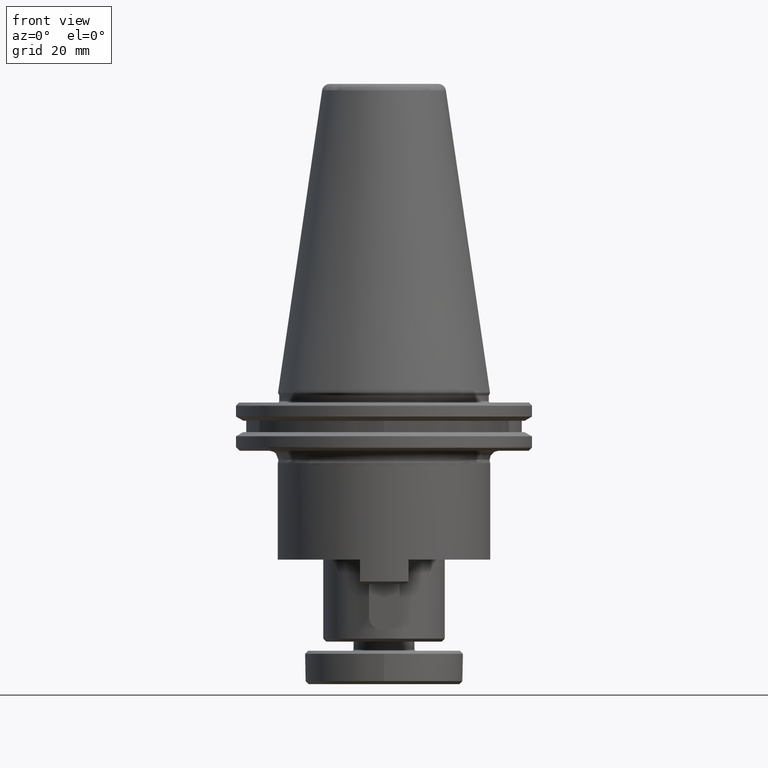
[diagram: clean part render]
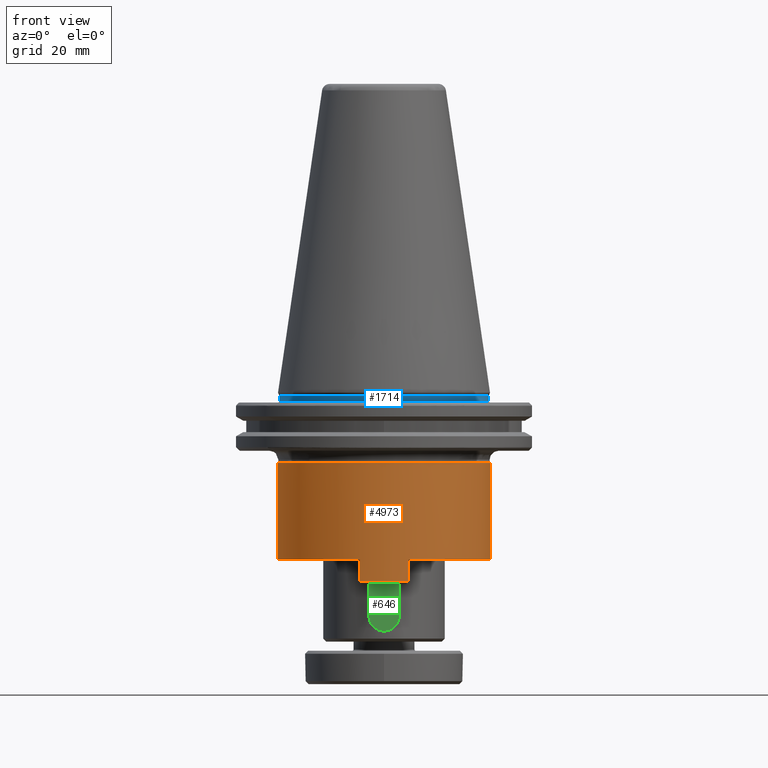
[diagram: same view with three faces highlighted in distinct colors, each labeled with its STEP entity id]
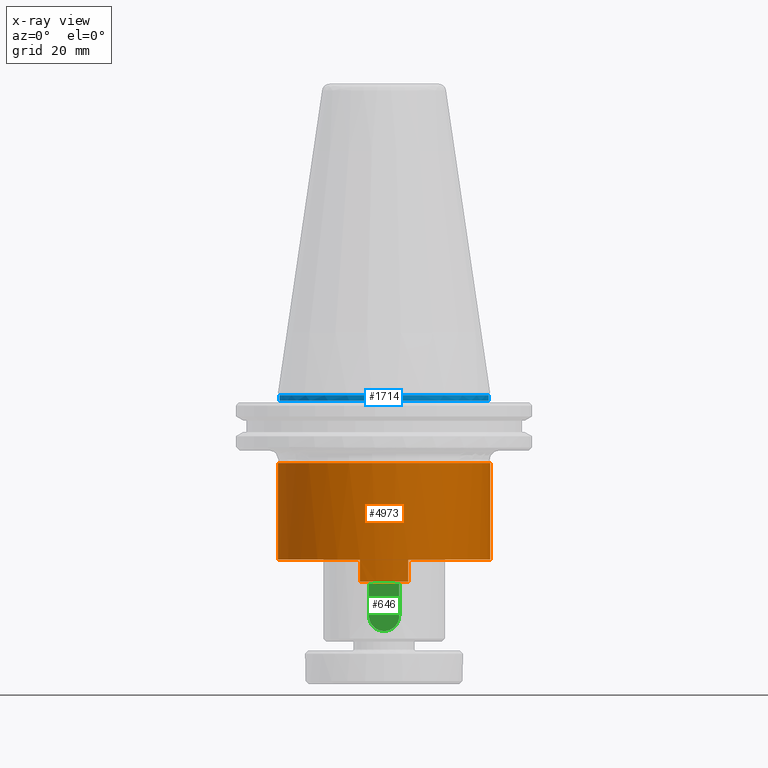
[diagram: x-ray of the same camera — body ghosted, the three highlighted faces saturated]
A machine part, front view with three faces highlighted in distinct colors.
The next image is the same camera in x-ray (body ghosted, the three faces saturated) — at least one of them is partly hidden behind the body in this view.
Their STEP definitions:

[orange] entity #4973 — the highlighted cylindrical surface (partial cylindrical patch) has radius 35 mm, axis along (-0, 0, 1).
#8 = CIRCLE ( 'NONE', #4147, 34.99999999999999300 ) ;
#19 = LINE ( 'NONE', #2529, #3015 ) ;
#55 = EDGE_CURVE ( 'NONE', #456, #1844, #19, .T. ) ;
#85 = VECTOR ( 'NONE', #1145, 1000.000000000000000 ) ;
#146 = CARTESIAN_POINT ( 'NONE',  ( 87.15291260394593600, 190.0907862128019900, 168.8002788161905400 ) ) ;
#180 = AXIS2_PLACEMENT_3D ( 'NONE', #3765, #1438, #4159 ) ;
#206 = AXIS2_PLACEMENT_3D ( 'NONE', #2676, #326, #3057 ) ;
#281 = VERTEX_POINT ( 'NONE', #2876 ) ;
#325 = ORIENTED_EDGE ( 'NONE', *, *, #1030, .T. ) ;
#326 = DIRECTION ( 'NONE',  ( 0.0000000000000000000, -0.0000000000000000000, -1.000000000000000000 ) ) ;
#439 = CARTESIAN_POINT ( 'NONE',  ( 146.9016499456452000, 165.3420488711029200, 200.6232458473564300 ) ) ;
#456 = VERTEX_POINT ( 'NONE', #146 ) ;
#485 = DIRECTION ( 'NONE',  ( -2.478176394252581700E-017, 0.0000000000000000000, 1.000000000000000000 ) ) ;
#733 = CARTESIAN_POINT ( 'NONE',  ( 122.1529126039459900, 190.0907862128020700, 168.8002788161905400 ) ) ;
#876 = VERTEX_POINT ( 'NONE', #439 ) ;
#929 = VERTEX_POINT ( 'NONE', #965 ) ;
#965 = CARTESIAN_POINT ( 'NONE',  ( 157.1529126039460500, 190.0907862128019900, 168.8002788161905400 ) ) ;
#984 = CARTESIAN_POINT ( 'NONE',  ( 130.1529126155098200, 156.0173361407153700, 161.6002788091370200 ) ) ;
#1030 = EDGE_CURVE ( 'NONE', #2580, #929, #4710, .T. ) ;
#1049 = ORIENTED_EDGE ( 'NONE', *, *, #55, .F. ) ;
#1120 = DIRECTION ( 'NONE',  ( 1.000000000000000000, 0.0000000000000000000, 0.0000000000000000000 ) ) ;
#1145 = DIRECTION ( 'NONE',  ( 2.478176394252581700E-017, -0.0000000000000000000, -1.000000000000000000 ) ) ;
#1153 = CARTESIAN_POINT ( 'NONE',  ( 114.1529126047918800, 156.0173361378017200, 161.6002788081370100 ) ) ;
#1392 = ORIENTED_EDGE ( 'NONE', *, *, #4512, .T. ) ;
#1438 = DIRECTION ( 'NONE',  ( -0.0000000000000000000, -0.0000000000000000000, 1.000000000000000000 ) ) ;
#1483 = FACE_OUTER_BOUND ( 'NONE', #2407, .T. ) ;
#1494 = CIRCLE ( 'NONE', #4090, 35.00000000000004300 ) ;
#1545 = DIRECTION ( 'NONE',  ( -2.478176394252581700E-017, 0.0000000000000000000, 1.000000000000000000 ) ) ;
#1571 = ORIENTED_EDGE ( 'NONE', *, *, #2979, .T. ) ;
#1725 = CARTESIAN_POINT ( 'NONE',  ( 122.1529126039459900, 190.0907862128020700, 200.6232458473564300 ) ) ;
#1844 = VERTEX_POINT ( 'NONE', #4679 ) ;
#2013 = EDGE_CURVE ( 'NONE', #4295, #4183, #8, .T. ) ;
#2028 = DIRECTION ( 'NONE',  ( 0.0000000000000000000, -0.0000000000000000000, -1.000000000000000000 ) ) ;
#2103 = AXIS2_PLACEMENT_3D ( 'NONE', #1725, #4456, #2118 ) ;
#2110 = CIRCLE ( 'NONE', #2103, 35.00000000065030300 ) ;
#2118 = DIRECTION ( 'NONE',  ( 1.000000000000000000, 0.0000000000000000000, 0.0000000000000000000 ) ) ;
#2256 = CARTESIAN_POINT ( 'NONE',  ( 157.1529126044182500, 190.0907862128019900, 200.6232458474099500 ) ) ;
#2264 = VERTEX_POINT ( 'NONE', #3957 ) ;
#2295 = EDGE_CURVE ( 'NONE', #3467, #876, #3724, .T. ) ;
#2351 = CARTESIAN_POINT ( 'NONE',  ( 122.1529126039459900, 155.0907862138019500, 161.6002788081370100 ) ) ;
#2407 = EDGE_LOOP ( 'NONE', ( #1049, #4894, #4859, #2774, #1571, #1392, #325, #4881, #3680, #4733, #4401 ) ) ;
#2418 = CIRCLE ( 'NONE', #206, 35.00000000062969700 ) ;
#2486 = CIRCLE ( 'NONE', #2986, 34.99999999999999300 ) ;
#2529 = CARTESIAN_POINT ( 'NONE',  ( 87.15291260394599200, 190.0907862128019900, 183.8002788091370400 ) ) ;
#2580 = VERTEX_POINT ( 'NONE', #4473 ) ;
#2598 = EDGE_CURVE ( 'NONE', #281, #1844, #2418, .T. ) ;
#2676 = CARTESIAN_POINT ( 'NONE',  ( 122.1529126039459900, 190.0907862128019900, 200.6232458474098900 ) ) ;
#2720 = VECTOR ( 'NONE', #4874, 1000.000000000000000 ) ;
#2759 = DIRECTION ( 'NONE',  ( 1.000000000000000000, 0.0000000000000000000, 0.0000000000000000000 ) ) ;
#2774 = ORIENTED_EDGE ( 'NONE', *, *, #2013, .T. ) ;
#2791 = CARTESIAN_POINT ( 'NONE',  ( 157.1529126039459900, 190.0907862128019900, 183.8002788091370400 ) ) ;
#2818 = CARTESIAN_POINT ( 'NONE',  ( 122.1529126039459900, 190.0907862128019900, 161.6002788081370100 ) ) ;
#2852 = VECTOR ( 'NONE', #4722, 1000.000000000000000 ) ;
#2856 = EDGE_CURVE ( 'NONE', #929, #3467, #3875, .T. ) ;
#2876 = CARTESIAN_POINT ( 'NONE',  ( 97.40417526224683800, 165.3420488711028600, 200.6232458473564300 ) ) ;
#2927 = CARTESIAN_POINT ( 'NONE',  ( 114.1529126043910500, 156.0173361378958800, 168.8002788161905400 ) ) ;
#2979 = EDGE_CURVE ( 'NONE', #4183, #2264, #2486, .T. ) ;
#2986 = AXIS2_PLACEMENT_3D ( 'NONE', #3874, #1545, #4269 ) ;
#3015 = VECTOR ( 'NONE', #3692, 1000.000000000000000 ) ;
#3057 = DIRECTION ( 'NONE',  ( -1.000000000000000000, 0.0000000000000000000, 0.0000000000000000000 ) ) ;
#3152 = EDGE_CURVE ( 'NONE', #281, #876, #2110, .T. ) ;
#3207 = DIRECTION ( 'NONE',  ( 1.000000000000000000, 0.0000000000000000000, 0.0000000000000000000 ) ) ;
#3434 = CYLINDRICAL_SURFACE ( 'NONE', #3767, 34.99999999999999300 ) ;
#3460 = DIRECTION ( 'NONE',  ( -0.0000000000000000000, -0.0000000000000000000, 1.000000000000000000 ) ) ;
#3467 = VERTEX_POINT ( 'NONE', #2256 ) ;
#3506 = EDGE_CURVE ( 'NONE', #456, #4507, #1494, .T. ) ;
#3536 = DIRECTION ( 'NONE',  ( -9.912705577010326800E-017, 0.0000000000000000000, 1.000000000000000000 ) ) ;
#3591 = EDGE_CURVE ( 'NONE', #4507, #4295, #4240, .T. ) ;
#3680 = ORIENTED_EDGE ( 'NONE', *, *, #2295, .T. ) ;
#3692 = DIRECTION ( 'NONE',  ( -9.912705577010326800E-017, 0.0000000000000000000, 1.000000000000000000 ) ) ;
#3724 = CIRCLE ( 'NONE', #4846, 35.00000000062969700 ) ;
#3765 = CARTESIAN_POINT ( 'NONE',  ( 122.1529126039459900, 190.0907862128020700, 168.8002788161905400 ) ) ;
#3767 = AXIS2_PLACEMENT_3D ( 'NONE', #4689, #3536, #2759 ) ;
#3874 = CARTESIAN_POINT ( 'NONE',  ( 122.1529126039459900, 190.0907862128019900, 161.6002788081370100 ) ) ;
#3875 = LINE ( 'NONE', #2791, #2852 ) ;
#3957 = CARTESIAN_POINT ( 'NONE',  ( 130.1529126095647700, 156.0173361400526900, 161.6002788084232700 ) ) ;
#4090 = AXIS2_PLACEMENT_3D ( 'NONE', #733, #3460, #1120 ) ;
#4147 = AXIS2_PLACEMENT_3D ( 'NONE', #2818, #485, #3207 ) ;
#4159 = DIRECTION ( 'NONE',  ( 1.000000000000000000, 0.0000000000000000000, 0.0000000000000000000 ) ) ;
#4183 = VERTEX_POINT ( 'NONE', #2351 ) ;
#4240 = LINE ( 'NONE', #4261, #85 ) ;
#4261 = CARTESIAN_POINT ( 'NONE',  ( 114.1529126056377500, 156.0173361376031400, 161.6002788091370200 ) ) ;
#4269 = DIRECTION ( 'NONE',  ( 1.000000000000000000, 0.0000000000000000000, 0.0000000000000000000 ) ) ;
#4295 = VERTEX_POINT ( 'NONE', #1153 ) ;
#4369 = CARTESIAN_POINT ( 'NONE',  ( 122.1529126039459900, 190.0907862128019900, 200.6232458474098900 ) ) ;
#4401 = ORIENTED_EDGE ( 'NONE', *, *, #2598, .T. ) ;
#4456 = DIRECTION ( 'NONE',  ( -0.0000000000000000000, -0.0000000000000000000, 1.000000000000000000 ) ) ;
#4473 = CARTESIAN_POINT ( 'NONE',  ( 130.1529126097279100, 156.0173361393578700, 168.8002788161905400 ) ) ;
#4507 = VERTEX_POINT ( 'NONE', #2927 ) ;
#4512 = EDGE_CURVE ( 'NONE', #2264, #2580, #4661, .T. ) ;
#4661 = LINE ( 'NONE', #984, #2720 ) ;
#4679 = CARTESIAN_POINT ( 'NONE',  ( 87.15291260347373700, 190.0907862128019900, 200.6232458474099500 ) ) ;
#4689 = CARTESIAN_POINT ( 'NONE',  ( 122.1529126039459900, 190.0907862128019900, 183.8002788091370400 ) ) ;
#4710 = CIRCLE ( 'NONE', #180, 35.00000000000004300 ) ;
#4722 = DIRECTION ( 'NONE',  ( -9.912705577010326800E-017, 0.0000000000000000000, 1.000000000000000000 ) ) ;
#4733 = ORIENTED_EDGE ( 'NONE', *, *, #3152, .F. ) ;
#4759 = DIRECTION ( 'NONE',  ( -1.000000000000000000, 0.0000000000000000000, 0.0000000000000000000 ) ) ;
#4846 = AXIS2_PLACEMENT_3D ( 'NONE', #4369, #2028, #4759 ) ;
#4859 = ORIENTED_EDGE ( 'NONE', *, *, #3591, .T. ) ;
#4874 = DIRECTION ( 'NONE',  ( -2.478176394252581700E-017, 0.0000000000000000000, 1.000000000000000000 ) ) ;
#4881 = ORIENTED_EDGE ( 'NONE', *, *, #2856, .T. ) ;
#4894 = ORIENTED_EDGE ( 'NONE', *, *, #3506, .T. ) ;
#4973 = ADVANCED_FACE ( 'NONE', ( #1483 ), #3434, .T. ) ;

[blue] entity #1714 — the highlighted cylindrical surface (partial cylindrical patch) has radius 34.5 mm, axis along (0, -0, 1).
#30 = EDGE_CURVE ( 'NONE', #3866, #3754, #4168, .T. ) ;
#185 = CARTESIAN_POINT ( 'NONE',  ( 97.75772866897946800, 165.6956022778354600, 221.1002788085793300 ) ) ;
#247 = ORIENTED_EDGE ( 'NONE', *, *, #2983, .F. ) ;
#255 = VECTOR ( 'NONE', #4793, 1000.000000000000000 ) ;
#373 = CARTESIAN_POINT ( 'NONE',  ( 87.65291260394599200, 190.0907862128019900, 221.1002788091370500 ) ) ;
#590 = CARTESIAN_POINT ( 'NONE',  ( 122.1529126039459900, 190.0907862128019900, 221.1002788085793300 ) ) ;
#653 = LINE ( 'NONE', #373, #4543 ) ;
#819 = ORIENTED_EDGE ( 'NONE', *, *, #30, .T. ) ;
#875 = CARTESIAN_POINT ( 'NONE',  ( 156.6529126039459900, 190.0907862128019900, 221.1002788085793300 ) ) ;
#975 = ORIENTED_EDGE ( 'NONE', *, *, #1443, .T. ) ;
#980 = DIRECTION ( 'NONE',  ( 1.000000000000000000, 0.0000000000000000000, 0.0000000000000000000 ) ) ;
#1180 = FACE_OUTER_BOUND ( 'NONE', #4575, .T. ) ;
#1265 = CARTESIAN_POINT ( 'NONE',  ( 122.1529126039459900, 190.0907862128020700, 221.1002788085793300 ) ) ;
#1396 = CARTESIAN_POINT ( 'NONE',  ( 146.5480965389126000, 165.6956022778355500, 221.1002788085793300 ) ) ;
#1443 = EDGE_CURVE ( 'NONE', #3988, #4501, #2948, .T. ) ;
#1618 = DIRECTION ( 'NONE',  ( 0.0000000000000000000, -0.0000000000000000000, 1.000000000000000000 ) ) ;
#1630 = EDGE_CURVE ( 'NONE', #3754, #3695, #3497, .T. ) ;
#1642 = DIRECTION ( 'NONE',  ( 1.000000000000000000, 0.0000000000000000000, 0.0000000000000000000 ) ) ;
#1714 = ADVANCED_FACE ( 'NONE', ( #1180 ), #3004, .T. ) ;
#1804 = DIRECTION ( 'NONE',  ( -1.571307496355803400E-018, 0.0000000000000000000, 1.000000000000000000 ) ) ;
#1868 = CARTESIAN_POINT ( 'NONE',  ( 156.6529126039459900, 190.0907862128019900, 222.8888633681370700 ) ) ;
#2149 = CARTESIAN_POINT ( 'NONE',  ( 87.65291260394599200, 190.0907862128019900, 222.8888633681370700 ) ) ;
#2439 = CARTESIAN_POINT ( 'NONE',  ( 122.1529126039459900, 190.0907862128019900, 221.1002788091370500 ) ) ;
#2545 = CIRCLE ( 'NONE', #4745, 34.49999999999998600 ) ;
#2591 = EDGE_CURVE ( 'NONE', #4249, #3695, #2545, .T. ) ;
#2811 = DIRECTION ( 'NONE',  ( 0.0000000000000000000, -0.0000000000000000000, 1.000000000000000000 ) ) ;
#2948 = CIRCLE ( 'NONE', #3223, 34.49999999999998600 ) ;
#2983 = EDGE_CURVE ( 'NONE', #3988, #4249, #653, .T. ) ;
#2996 = CARTESIAN_POINT ( 'NONE',  ( 87.65291260394599200, 190.0907862128019900, 221.1002788085793300 ) ) ;
#3004 = CYLINDRICAL_SURFACE ( 'NONE', #3646, 34.49999999999998600 ) ;
#3219 = AXIS2_PLACEMENT_3D ( 'NONE', #1265, #3980, #1642 ) ;
#3223 = AXIS2_PLACEMENT_3D ( 'NONE', #3947, #1618, #4337 ) ;
#3240 = CARTESIAN_POINT ( 'NONE',  ( 156.6529126039459900, 190.0907862128019900, 221.1002788091370500 ) ) ;
#3310 = DIRECTION ( 'NONE',  ( 0.0000000000000000000, -0.0000000000000000000, 1.000000000000000000 ) ) ;
#3497 = LINE ( 'NONE', #3240, #255 ) ;
#3590 = DIRECTION ( 'NONE',  ( 1.000000000000000000, 0.0000000000000000000, 0.0000000000000000000 ) ) ;
#3646 = AXIS2_PLACEMENT_3D ( 'NONE', #2439, #2811, #3590 ) ;
#3695 = VERTEX_POINT ( 'NONE', #1868 ) ;
#3722 = EDGE_CURVE ( 'NONE', #4501, #3866, #4791, .T. ) ;
#3754 = VERTEX_POINT ( 'NONE', #875 ) ;
#3866 = VERTEX_POINT ( 'NONE', #1396 ) ;
#3947 = CARTESIAN_POINT ( 'NONE',  ( 122.1529126039459900, 190.0907862128019900, 221.1002788085793300 ) ) ;
#3980 = DIRECTION ( 'NONE',  ( -0.0000000000000000000, -0.0000000000000000000, 1.000000000000000000 ) ) ;
#3988 = VERTEX_POINT ( 'NONE', #2996 ) ;
#4129 = ORIENTED_EDGE ( 'NONE', *, *, #3722, .T. ) ;
#4141 = CARTESIAN_POINT ( 'NONE',  ( 122.1529126039459900, 190.0907862128019900, 222.8888633681370700 ) ) ;
#4168 = CIRCLE ( 'NONE', #4544, 34.49999999999998600 ) ;
#4249 = VERTEX_POINT ( 'NONE', #2149 ) ;
#4337 = DIRECTION ( 'NONE',  ( 1.000000000000000000, 0.0000000000000000000, 0.0000000000000000000 ) ) ;
#4501 = VERTEX_POINT ( 'NONE', #185 ) ;
#4543 = VECTOR ( 'NONE', #4641, 1000.000000000000000 ) ;
#4544 = AXIS2_PLACEMENT_3D ( 'NONE', #590, #3310, #980 ) ;
#4575 = EDGE_LOOP ( 'NONE', ( #247, #975, #4129, #819, #4660, #4609 ) ) ;
#4603 = DIRECTION ( 'NONE',  ( 1.000000000000000000, 0.0000000000000000000, 0.0000000000000000000 ) ) ;
#4609 = ORIENTED_EDGE ( 'NONE', *, *, #2591, .F. ) ;
#4641 = DIRECTION ( 'NONE',  ( 0.0000000000000000000, -0.0000000000000000000, 1.000000000000000000 ) ) ;
#4660 = ORIENTED_EDGE ( 'NONE', *, *, #1630, .T. ) ;
#4745 = AXIS2_PLACEMENT_3D ( 'NONE', #4141, #1804, #4603 ) ;
#4791 = CIRCLE ( 'NONE', #3219, 34.49999997741594600 ) ;
#4793 = DIRECTION ( 'NONE',  ( 0.0000000000000000000, -0.0000000000000000000, 1.000000000000000000 ) ) ;

[green] entity #646 — the highlighted planar face has unit normal (0, 1, 0).
#93 = CARTESIAN_POINT ( 'NONE',  ( 122.1779126039460000, 167.5907862128019900, 150.2752788091369800 ) ) ;
#110 = DIRECTION ( 'NONE',  ( -0.0000000000000000000, -0.0000000000000000000, 1.000000000000000000 ) ) ;
#136 = VECTOR ( 'NONE', #444, 1000.000000000000000 ) ;
#395 = LINE ( 'NONE', #3936, #3261 ) ;
#444 = DIRECTION ( 'NONE',  ( 0.0000000000000000000, 0.0000000000000000000, -1.000000000000000000 ) ) ;
#493 = DIRECTION ( 'NONE',  ( 0.0000000000000000000, 0.0000000000000000000, 1.000000000000000000 ) ) ;
#602 = EDGE_CURVE ( 'NONE', #3941, #3071, #3735, .T. ) ;
#646 = ADVANCED_FACE ( 'NONE', ( #3859 ), #931, .F. ) ;
#714 = B_SPLINE_CURVE_WITH_KNOTS ( 'NONE', 3,
 ( #4052, #4081, #3321, #989, #3708, #1379, #4093, #1760 ),
 .UNSPECIFIED., .F., .F.,
 ( 4, 2, 2, 4 ),
 ( 0.009804847046633638100, 0.01347891829386248200, 0.01531595391747690400, 0.01715298954109132500 ),
 .UNSPECIFIED. ) ;
#843 = EDGE_CURVE ( 'NONE', #4882, #4866, #395, .T. ) ;
#931 = PLANE ( 'NONE',  #3256 ) ;
#989 = CARTESIAN_POINT ( 'NONE',  ( 122.7649817344940100, 167.5907862128019900, 161.1003481949146900 ) ) ;
#1069 = VECTOR ( 'NONE', #2890, 1000.000000000000000 ) ;
#1379 = CARTESIAN_POINT ( 'NONE',  ( 124.6104064037668600, 167.5907862128020200, 160.9747784120184500 ) ) ;
#1671 = EDGE_CURVE ( 'NONE', #4866, #3444, #4284, .T. ) ;
#1685 = ORIENTED_EDGE ( 'NONE', *, *, #843, .F. ) ;
#1711 = EDGE_CURVE ( 'NONE', #3444, #3941, #2088, .T. ) ;
#1760 = CARTESIAN_POINT ( 'NONE',  ( 125.8393743288416000, 167.5907862128019900, 160.8002788080598300 ) ) ;
#1841 = CARTESIAN_POINT ( 'NONE',  ( 127.1779126039460100, 167.5907862128019900, 150.2752788091369800 ) ) ;
#1893 = ORIENTED_EDGE ( 'NONE', *, *, #1711, .F. ) ;
#1976 = CARTESIAN_POINT ( 'NONE',  ( 117.1779126039460000, 167.5907862128019900, 160.8002788091370100 ) ) ;
#2088 = CIRCLE ( 'NONE', #2337, 5.000000000000004400 ) ;
#2337 = AXIS2_PLACEMENT_3D ( 'NONE', #93, #2833, #493 ) ;
#2472 = CARTESIAN_POINT ( 'NONE',  ( 127.1779126039460100, 167.5907862128019900, 177.4672788091369900 ) ) ;
#2509 = CARTESIAN_POINT ( 'NONE',  ( 127.1779126039460100, 167.5907862128019900, 160.8002788091370100 ) ) ;
#2510 = ORIENTED_EDGE ( 'NONE', *, *, #3116, .F. ) ;
#2595 = CARTESIAN_POINT ( 'NONE',  ( 117.1779126039460000, 167.5907862128019900, 150.2752788091369800 ) ) ;
#2833 = DIRECTION ( 'NONE',  ( -0.0000000000000000000, 1.000000000000000000, -0.0000000000000000000 ) ) ;
#2890 = DIRECTION ( 'NONE',  ( 1.000000000000000000, 0.0000000000000000000, 0.0000000000000000000 ) ) ;
#3069 = DIRECTION ( 'NONE',  ( 0.0000000000000000000, 1.000000000000000000, 0.0000000000000000000 ) ) ;
#3071 = VERTEX_POINT ( 'NONE', #1976 ) ;
#3116 = EDGE_CURVE ( 'NONE', #3071, #4474, #4175, .T. ) ;
#3256 = AXIS2_PLACEMENT_3D ( 'NONE', #2472, #3069, #4892 ) ;
#3261 = VECTOR ( 'NONE', #4328, 1000.000000000000000 ) ;
#3287 = ORIENTED_EDGE ( 'NONE', *, *, #602, .F. ) ;
#3321 = CARTESIAN_POINT ( 'NONE',  ( 120.9211382418774600, 167.5907862128019300, 161.1001396056554700 ) ) ;
#3444 = VERTEX_POINT ( 'NONE', #1841 ) ;
#3576 = ORIENTED_EDGE ( 'NONE', *, *, #1671, .F. ) ;
#3708 = CARTESIAN_POINT ( 'NONE',  ( 123.3799133444874500, 167.5907862128019900, 161.0751922774242900 ) ) ;
#3735 = LINE ( 'NONE', #4388, #4780 ) ;
#3859 = FACE_OUTER_BOUND ( 'NONE', #4468, .T. ) ;
#3936 = CARTESIAN_POINT ( 'NONE',  ( 127.1779126039460100, 167.5907862128019900, 160.8002788091370100 ) ) ;
#3941 = VERTEX_POINT ( 'NONE', #2595 ) ;
#4052 = CARTESIAN_POINT ( 'NONE',  ( 118.4664508790503800, 167.5907862128019900, 160.8002788080598300 ) ) ;
#4061 = CARTESIAN_POINT ( 'NONE',  ( 118.4664508790503800, 167.5907862128019900, 160.8002788080598300 ) ) ;
#4081 = CARTESIAN_POINT ( 'NONE',  ( 119.6927631753991500, 167.5907862128019900, 160.9985574634565600 ) ) ;
#4093 = CARTESIAN_POINT ( 'NONE',  ( 125.2285245729493700, 167.5907862128019900, 160.8990452222990100 ) ) ;
#4175 = LINE ( 'NONE', #2509, #1069 ) ;
#4194 = CARTESIAN_POINT ( 'NONE',  ( 125.8393743288416000, 167.5907862128019900, 160.8002788080598300 ) ) ;
#4284 = LINE ( 'NONE', #4320, #136 ) ;
#4320 = CARTESIAN_POINT ( 'NONE',  ( 127.1779126039460100, 167.5907862128019900, 177.4672788091369900 ) ) ;
#4328 = DIRECTION ( 'NONE',  ( 1.000000000000000000, 0.0000000000000000000, 0.0000000000000000000 ) ) ;
#4388 = CARTESIAN_POINT ( 'NONE',  ( 117.1779126039460000, 167.5907862128019900, 177.4672788091369900 ) ) ;
#4468 = EDGE_LOOP ( 'NONE', ( #2510, #3287, #1893, #3576, #1685, #4525 ) ) ;
#4474 = VERTEX_POINT ( 'NONE', #4061 ) ;
#4525 = ORIENTED_EDGE ( 'NONE', *, *, #4747, .F. ) ;
#4747 = EDGE_CURVE ( 'NONE', #4474, #4882, #714, .T. ) ;
#4780 = VECTOR ( 'NONE', #110, 1000.000000000000000 ) ;
#4866 = VERTEX_POINT ( 'NONE', #4955 ) ;
#4882 = VERTEX_POINT ( 'NONE', #4194 ) ;
#4892 = DIRECTION ( 'NONE',  ( 0.0000000000000000000, 0.0000000000000000000, -1.000000000000000000 ) ) ;
#4955 = CARTESIAN_POINT ( 'NONE',  ( 127.1779126039460100, 167.5907862128019900, 160.8002788091370100 ) ) ;